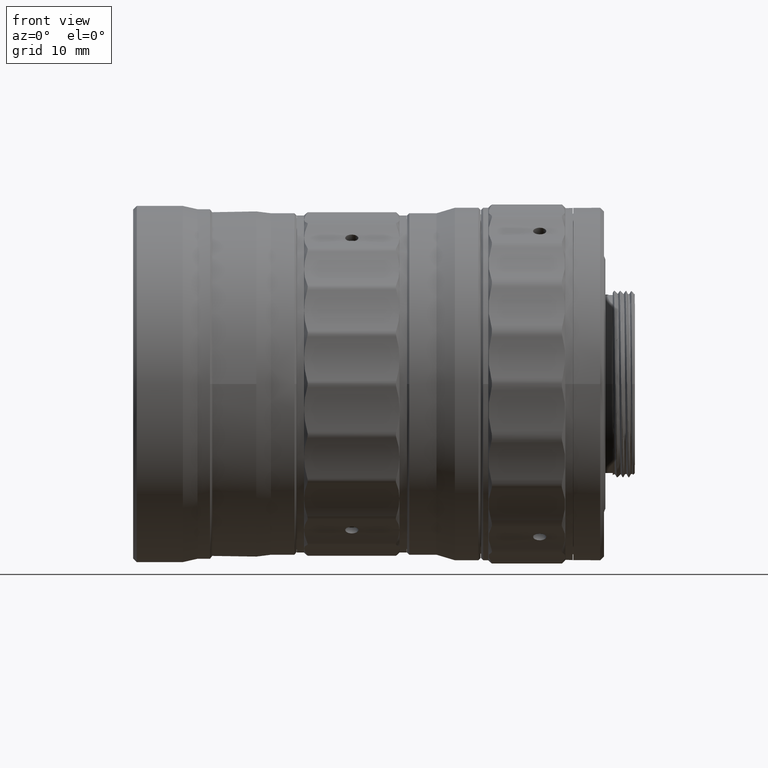
[diagram: clean part render]
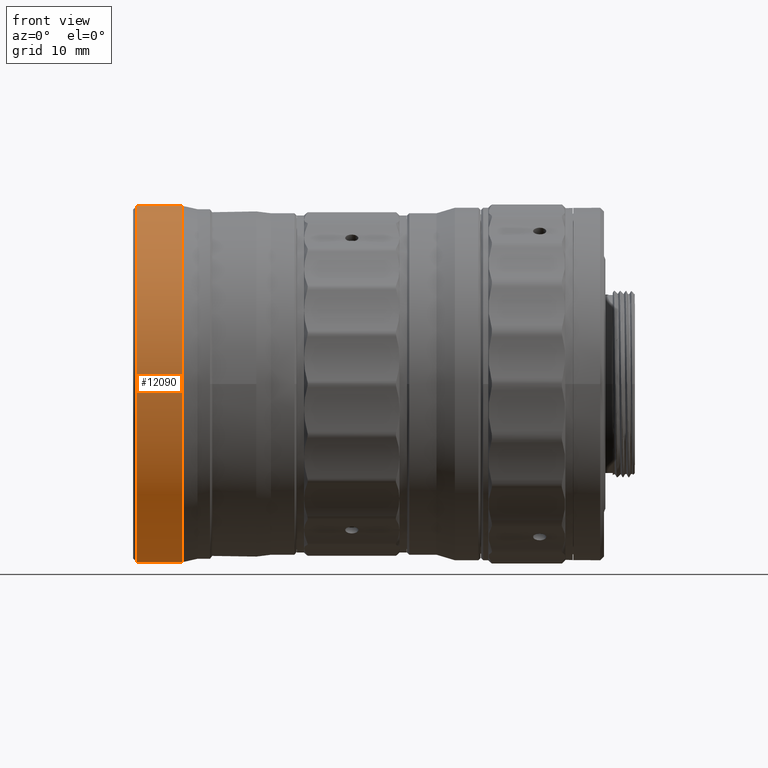
[diagram: same view with one face highlighted and labeled with its STEP entity id]
A machine part, front view. The second image highlights one B-rep face of the part: STEP entity #12090.
In plain terms, the highlighted face is a freeform B-spline surface patch.
Its self-contained STEP definition (entity closure, byte-faithful):
#2539 = CARTESIAN_POINT ( 'NONE',  ( -3.499995198999999779, -48.49999999005246565, 24.24999998010497038 ) ) ;
#3473 = CARTESIAN_POINT ( 'NONE',  ( 2.770000000000000018, -48.49999998134254042, 24.24999998010498459 ) ) ;
#9147 = EDGE_CURVE ( 'NONE', #81498, #73452, #59082, .T. ) ;
#9888 = ORIENTED_EDGE ( 'NONE', *, *, #78982, .F. ) ;
#9964 = CARTESIAN_POINT ( 'NONE',  ( 2.770000000000000018, -6.062500501613500009E-09, -24.25000000000000000 ) ) ;
#12090 = ADVANCED_FACE ( 'NONE', ( #61806 ), #61357, .F. ) ;
#16274 = CARTESIAN_POINT ( 'NONE',  ( 2.770000000000000018, -6.062500501613500009E-09, 24.25000000000000000 ) ) ;
#20718 = B_SPLINE_CURVE_WITH_KNOTS ( 'NONE', 1,
 ( #45698, #26231 ),
 .UNSPECIFIED., .F., .F.,
 ( 2, 2 ),
 ( -1.000000000000000000, 0.0000000000000000000 ),
 .UNSPECIFIED. ) ;
#21781 = CARTESIAN_POINT ( 'NONE',  ( -3.499994992123350190, -2.177484664505685355E-09, -24.24999937937659666 ) ) ;
#21913 = CARTESIAN_POINT ( 'NONE',  ( -3.499994992123350190, -9.947516028409589648E-09, 24.24999937937659666 ) ) ;
#22212 = CARTESIAN_POINT ( 'NONE',  ( -3.499995199000000223, -48.49999666575001811, -24.24999833629005863 ) ) ;
#22288 = VERTEX_POINT ( 'NONE', #16274 ) ;
#22398 = CARTESIAN_POINT ( 'NONE',  ( 2.770000000000000018, -9.947516282993562467E-09, 24.25000000000000000 ) ) ;
#26231 = CARTESIAN_POINT ( 'NONE',  ( -3.499994992123350190, -2.177484664505685355E-09, -24.24999937937659666 ) ) ;
#28899 = CARTESIAN_POINT ( 'NONE',  ( -3.499995198999999779, -48.49999998010495972, -24.24999999999999289 ) ) ;
#34958 =( BOUNDED_CURVE ( )  B_SPLINE_CURVE ( 3, ( #9964, #62726, #3473, #68383 ),
 .UNSPECIFIED., .F., .F. ) 
 B_SPLINE_CURVE_WITH_KNOTS ( ( 4, 4 ),
 ( -3.141592653589795336, 0.0000000000000000000 ),
 .UNSPECIFIED. ) 
 CURVE ( )  GEOMETRIC_REPRESENTATION_ITEM ( )  RATIONAL_B_SPLINE_CURVE ( ( 1.000000000000000000, 0.3333333335299309419, 0.3333333335299309419, 1.000000000000000000 ) ) 
 REPRESENTATION_ITEM ( '' )  );
#36346 = CARTESIAN_POINT ( 'NONE',  ( -3.499994992123350190, -9.947516028409589648E-09, 24.24999937937659666 ) ) ;
#36517 = EDGE_LOOP ( 'NONE', ( #59782, #46650, #57959, #9888 ) ) ;
#37620 = CARTESIAN_POINT ( 'NONE',  ( 2.770000000000000018, -6.062500501613500009E-09, 24.25000000000000000 ) ) ;
#43499 = EDGE_CURVE ( 'NONE', #50602, #22288, #34958, .T. ) ;
#44797 = B_SPLINE_CURVE_WITH_KNOTS ( 'NONE', 1,
 ( #36346, #37620 ),
 .UNSPECIFIED., .F., .F.,
 ( 2, 2 ),
 ( -1.000000000000000000, 0.0000000000000000000 ),
 .UNSPECIFIED. ) ;
#45698 = CARTESIAN_POINT ( 'NONE',  ( 2.770000000000000018, -6.062500501613500009E-09, -24.25000000000000000 ) ) ;
#46650 = ORIENTED_EDGE ( 'NONE', *, *, #67364, .F. ) ;
#48603 = CARTESIAN_POINT ( 'NONE',  ( -3.499994992123350190, -9.947516028409589648E-09, 24.24999937937659666 ) ) ;
#48789 = CARTESIAN_POINT ( 'NONE',  ( -3.499995199000000223, -9.947516282993562467E-09, 24.25000000000000000 ) ) ;
#50602 = VERTEX_POINT ( 'NONE', #72850 ) ;
#51347 = CARTESIAN_POINT ( 'NONE',  ( 2.769999999999999574, -48.49999999005246565, 24.24999998010497038 ) ) ;
#55316 = CARTESIAN_POINT ( 'NONE',  ( -3.499995199000000223, -5.939536976479499186E-15, -24.25000000000000000 ) ) ;
#57959 = ORIENTED_EDGE ( 'NONE', *, *, #43499, .T. ) ;
#59082 =( BOUNDED_CURVE ( )  B_SPLINE_CURVE ( 3, ( #21781, #22212, #64024, #48603 ),
 .UNSPECIFIED., .F., .F. ) 
 B_SPLINE_CURVE_WITH_KNOTS ( ( 4, 4 ),
 ( -3.141592653589795336, 0.0000000000000000000 ),
 .UNSPECIFIED. ) 
 CURVE ( )  GEOMETRIC_REPRESENTATION_ITEM ( )  RATIONAL_B_SPLINE_CURVE ( ( 1.000000000000000000, 0.3333333335299309419, 0.3333333335299309419, 1.000000000000000000 ) ) 
 REPRESENTATION_ITEM ( '' )  );
#59782 = ORIENTED_EDGE ( 'NONE', *, *, #9147, .F. ) ;
#61357 =( BOUNDED_SURFACE ( )  B_SPLINE_SURFACE ( 1, 3, ( 
 ( #48789, #2539, #28899, #55316 ),
 ( #22398, #51347, #63043, #63906 ) ),
 .UNSPECIFIED., .F., .F., .F. ) 
 B_SPLINE_SURFACE_WITH_KNOTS ( ( 2, 2 ),
 ( 4, 4 ),
 ( 0.0000000000000000000, 1.000000000000000000 ),
 ( 0.0000000000000000000, 1.000000000000000000 ),
 .UNSPECIFIED. ) 
 GEOMETRIC_REPRESENTATION_ITEM ( )  RATIONAL_B_SPLINE_SURFACE ( (
 ( 1.000000000000000000, 0.3333333334700690487, 0.3333333334700690487, 1.000000000000000000),
 ( 1.000000000000000000, 0.3333333334700690487, 0.3333333334700690487, 1.000000000000000000) ) ) 
 REPRESENTATION_ITEM ( '' )  SURFACE ( )  );
#61806 = FACE_OUTER_BOUND ( 'NONE', #36517, .T. ) ;
#62726 = CARTESIAN_POINT ( 'NONE',  ( 2.770000000000000018, -48.49999997575000776, -24.24999999129005346 ) ) ;
#63043 = CARTESIAN_POINT ( 'NONE',  ( 2.769999999999999574, -48.49999998010495972, -24.24999999999999289 ) ) ;
#63906 = CARTESIAN_POINT ( 'NONE',  ( 2.770000000000000018, -5.939536976479499186E-15, -24.25000000000000000 ) ) ;
#64024 = CARTESIAN_POINT ( 'NONE',  ( -3.499995199000033530, -48.49999667134255787, 24.24999832510498976 ) ) ;
#67364 = EDGE_CURVE ( 'NONE', #50602, #81498, #20718, .T. ) ;
#68383 = CARTESIAN_POINT ( 'NONE',  ( 2.770000000000000018, -6.062500501613500009E-09, 24.25000000000000000 ) ) ;
#72850 = CARTESIAN_POINT ( 'NONE',  ( 2.770000000000000018, -6.062500501613500009E-09, -24.25000000000000000 ) ) ;
#73452 = VERTEX_POINT ( 'NONE', #21913 ) ;
#78982 = EDGE_CURVE ( 'NONE', #73452, #22288, #44797, .T. ) ;
#80261 = CARTESIAN_POINT ( 'NONE',  ( -3.499994992123350190, -2.177484664505685355E-09, -24.24999937937659666 ) ) ;
#81498 = VERTEX_POINT ( 'NONE', #80261 ) ;